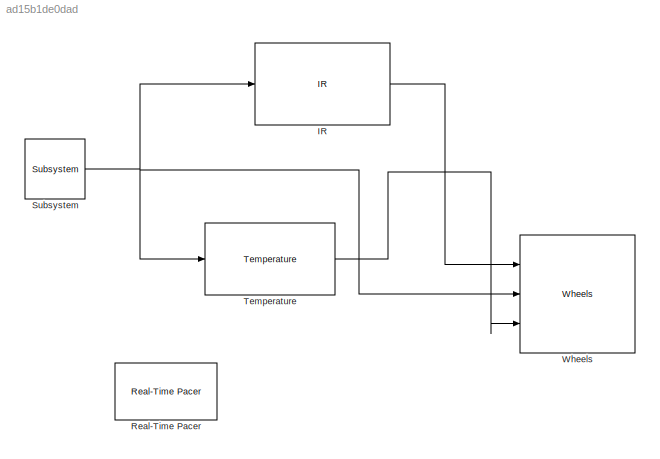
MODEL slx_ad15b1de0dad
KIND model
CONFIG AbsTol = auto
CONFIG EnableMultiTasking = off
CONFIG FixedStep = auto
CONFIG MaxStep = auto
CONFIG MinStep = auto
CONFIG RelTol = 1e-3
CONFIG SampleTimeConstraint = Unconstrained
CONFIG Solver = VariableStepAuto
CONFIG SolverName = VariableStepAuto
CONFIG StartTime = 0.0
CONFIG StopTime = inf
BLOCK [Reference] IR   REF=libraryProject2/IR 
  Ports = [1, 1]
  SourceBlock = libraryProject2/IR
  SourceType = SubSystem
BLOCK [Reference] Real-Time Pacer  REF=realtime_pacer_lib/Real-Time Pacer
  Ports = []
  SourceBlock = realtime_pacer_lib/Real-Time Pacer
  SourceType = RealTime_Pacer
BLOCK [Reference] Subsystem  REF=libraryProject2/Subsystem
  Ports = [0, 1]
  SourceBlock = libraryProject2/Subsystem
  SourceType = SubSystem
BLOCK [Reference] Temperature  REF=libraryProject2/Temperature
  Ports = [1, 1]
  SourceBlock = libraryProject2/Temperature
  SourceType = SubSystem
BLOCK [Reference] Wheels  REF=libraryProject2/Wheels
  Ports = [3]
  SourceBlock = libraryProject2/Wheels
  SourceType = SubSystem
LINE IR :1 -> Wheels:1
NET Subsystem:1 -> IR :1, Temperature:1, Wheels:2
LINE Temperature:1 -> Wheels:3
note: NET lines group one-source signal fan-out (src -> all destinations, sorted); 1:1 wires keep LINE
